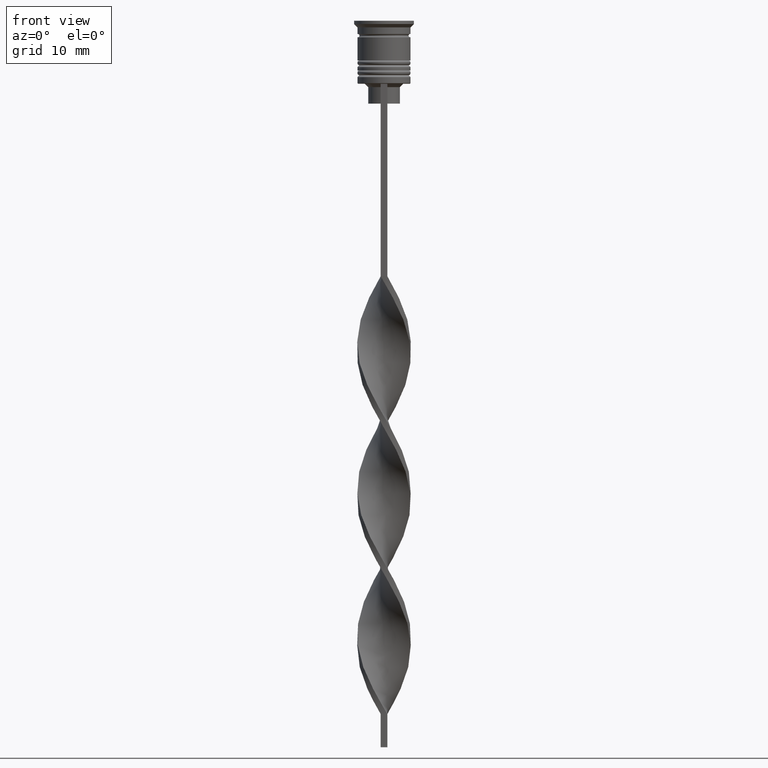
[diagram: clean part render]
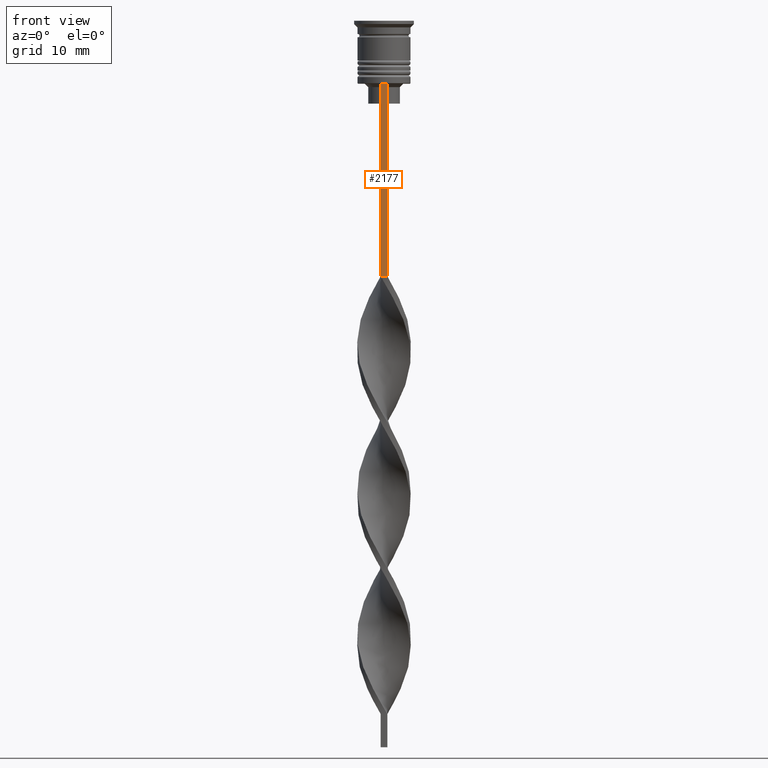
[diagram: same view with one face highlighted and labeled with its STEP entity id]
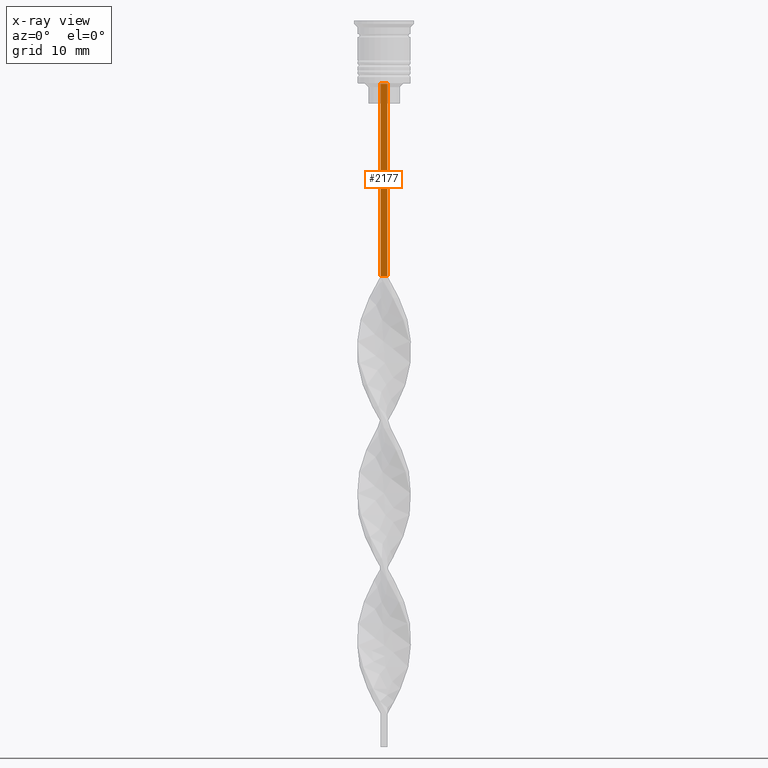
[diagram: x-ray of the same camera — body ghosted, the highlighted face saturated]
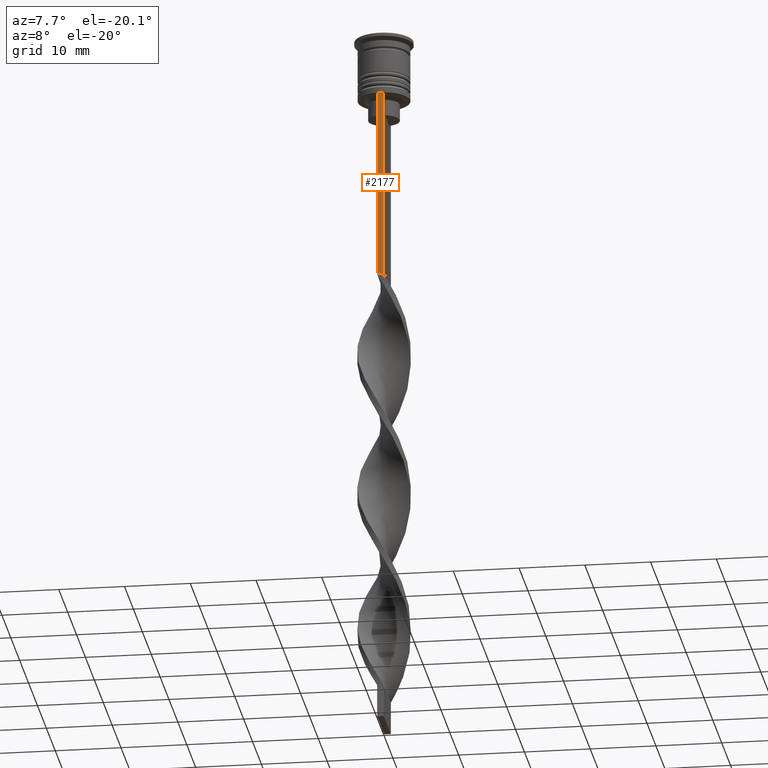
[diagram: same view with one face highlighted and labeled with its STEP entity id]
A machine part, front view. The second image highlights one B-rep face of the part: STEP entity #2177.
The next image is the same camera in x-ray: the body ghosted, the highlighted face saturated — about 0% of this face is hidden behind the body in this view.
A second angle (auxiliary view) of the same face is appended — the face is thin or edge-on in the first view.
In plain terms, the highlighted planar face has unit normal (0, -1, -0).
Its self-contained STEP definition (entity closure, byte-faithful):
#168 = CARTESIAN_POINT ( 'NONE',  ( 0.5000000000000000000, -4.000000000000000000, -9.500000000000000000 ) ) ;
#295 = EDGE_CURVE ( 'NONE', #3031, #2423, #1700, .T. ) ;
#343 = LINE ( 'NONE', #1416, #3588 ) ;
#376 = VECTOR ( 'NONE', #2900, 1000.000000000000000 ) ;
#532 = EDGE_CURVE ( 'NONE', #2832, #3031, #1532, .T. ) ;
#590 = DIRECTION ( 'NONE',  ( 0.000000000000000000, 0.000000000000000000, -1.000000000000000000 ) ) ;
#600 = EDGE_CURVE ( 'NONE', #2423, #1508, #3235, .T. ) ;
#834 = DIRECTION ( 'NONE',  ( 0.000000000000000000, 0.000000000000000000, -1.000000000000000000 ) ) ;
#1251 = PLANE ( 'NONE',  #3164 ) ;
#1282 = ORIENTED_EDGE ( 'NONE', *, *, #532, .F. ) ;
#1296 = DIRECTION ( 'NONE',  ( -1.000000000000000000, 0.000000000000000000, 0.000000000000000000 ) ) ;
#1416 = CARTESIAN_POINT ( 'NONE',  ( -0.5000000000000000000, -4.000000000000000000, -1.437742251701450202 ) ) ;
#1440 = CARTESIAN_POINT ( 'NONE',  ( 0.5000000000000000000, -4.000000000000000000, -1.437742251701450202 ) ) ;
#1508 = VERTEX_POINT ( 'NONE', #3219 ) ;
#1532 = LINE ( 'NONE', #2084, #376 ) ;
#1543 = VECTOR ( 'NONE', #1296, 1000.000000000000000 ) ;
#1589 = DIRECTION ( 'NONE',  ( 0.000000000000000000, -1.000000000000000000, -0.000000000000000000 ) ) ;
#1596 = CARTESIAN_POINT ( 'NONE',  ( -0.5000000000000000000, -4.000000000000000000, -9.500000000000000000 ) ) ;
#1638 = ORIENTED_EDGE ( 'NONE', *, *, #295, .F. ) ;
#1700 = LINE ( 'NONE', #1440, #2189 ) ;
#1822 = CARTESIAN_POINT ( 'NONE',  ( 0.5000000000000000000, -4.000000000000000000, -38.50000000000000000 ) ) ;
#1842 = ORIENTED_EDGE ( 'NONE', *, *, #3481, .T. ) ;
#2084 = CARTESIAN_POINT ( 'NONE',  ( 0.5000000000000000000, -4.000000000000000000, -9.500000000000000000 ) ) ;
#2177 = ADVANCED_FACE ( 'NONE', ( #3226 ), #1251, .T. ) ;
#2189 = VECTOR ( 'NONE', #834, 1000.000000000000000 ) ;
#2218 = CARTESIAN_POINT ( 'NONE',  ( 0.5000000000000000000, -4.000000000000000000, -1.437742251701450202 ) ) ;
#2423 = VERTEX_POINT ( 'NONE', #3116 ) ;
#2496 = DIRECTION ( 'NONE',  ( 0.000000000000000000, 0.000000000000000000, -1.000000000000000000 ) ) ;
#2597 = ORIENTED_EDGE ( 'NONE', *, *, #600, .F. ) ;
#2832 = VERTEX_POINT ( 'NONE', #1596 ) ;
#2900 = DIRECTION ( 'NONE',  ( 1.000000000000000000, 0.000000000000000000, 0.000000000000000000 ) ) ;
#3031 = VERTEX_POINT ( 'NONE', #168 ) ;
#3116 = CARTESIAN_POINT ( 'NONE',  ( 0.5000000000000000000, -4.000000000000000000, -38.50000000000000000 ) ) ;
#3164 = AXIS2_PLACEMENT_3D ( 'NONE', #2218, #1589, #2496 ) ;
#3219 = CARTESIAN_POINT ( 'NONE',  ( -0.5000000000000000000, -4.000000000000000000, -38.50000000000000000 ) ) ;
#3226 = FACE_OUTER_BOUND ( 'NONE', #3520, .T. ) ;
#3235 = LINE ( 'NONE', #1822, #1543 ) ;
#3481 = EDGE_CURVE ( 'NONE', #2832, #1508, #343, .T. ) ;
#3520 = EDGE_LOOP ( 'NONE', ( #1282, #1842, #2597, #1638 ) ) ;
#3588 = VECTOR ( 'NONE', #590, 1000.000000000000000 ) ;